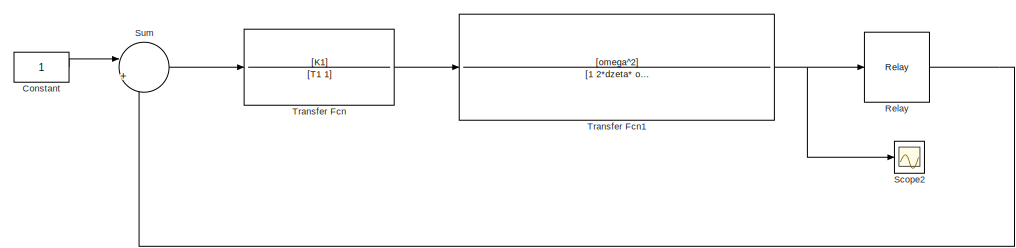
[diagram: root canvas - part 1/2, top center region]
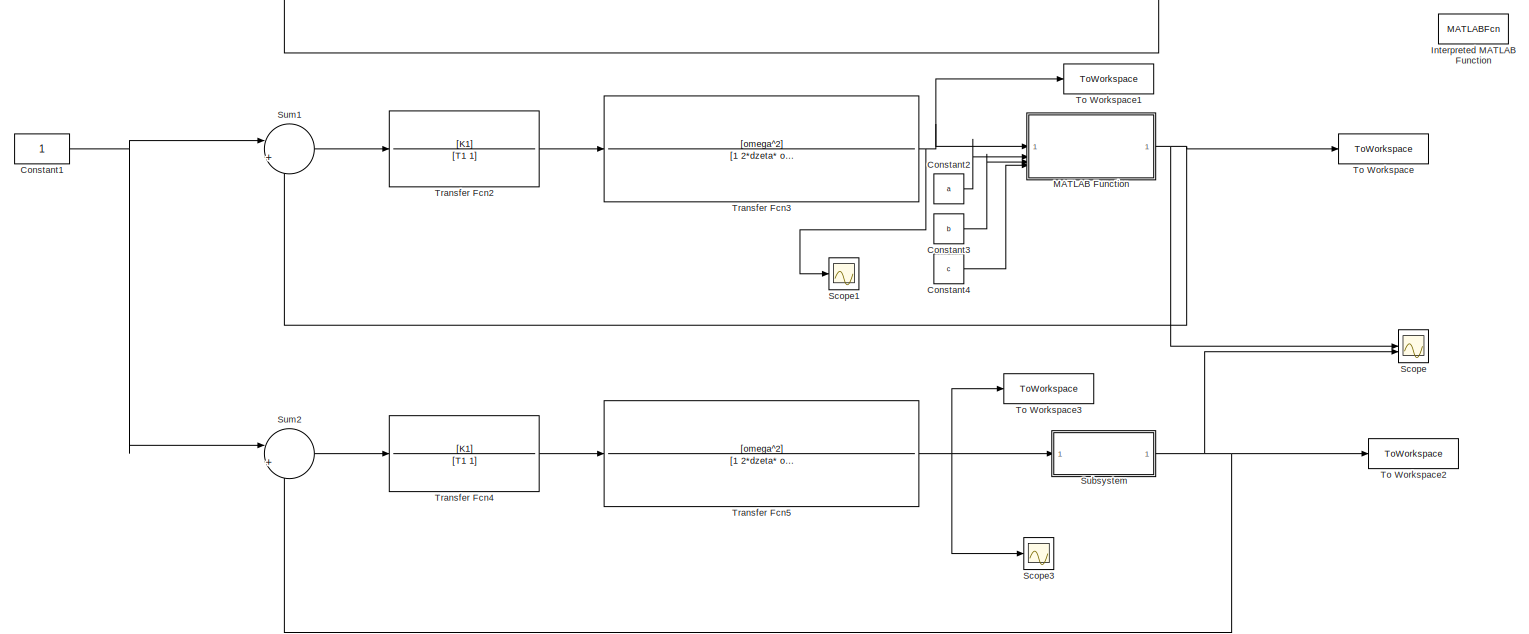
[diagram: root canvas - part 2/2, most of the canvas]
MODEL slx_43e80cd27589
KIND model
CONFIG AbsTol = auto
CONFIG EnableMultiTasking = on
CONFIG FixedStep = auto
CONFIG MaxStep = auto
CONFIG MinStep = auto
CONFIG RelTol = 1e-3
CONFIG SampleTimeConstraint = Unconstrained
CONFIG SolverName = ode15s
CONFIG StartTime = 0.0
CONFIG StopTime = 5
BLOCK [Constant] Constant
  Commented = on
BLOCK [Constant] Constant1
BLOCK [Constant] Constant2
  Value = a
BLOCK [Constant] Constant3
  Value = b
BLOCK [Constant] Constant4
  Value = c
BLOCK [MATLABFcn] Interpreted MATLAB Function
  Commented = on
  MATLABFcn = relay
  OutputSignalType = real
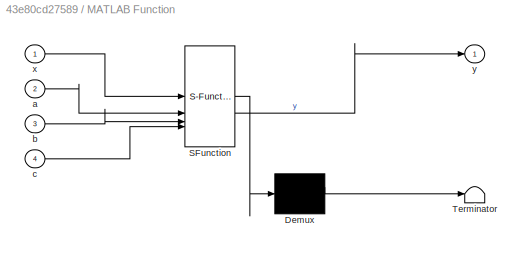
BLOCK [SubSystem] MATLAB Function
  ErrorFcn = Stateflow.Translate.translate
  PermitHierarchicalResolution = ExplicitOnly
  SFBlockType = MATLAB Function
  TreatAsAtomicUnit = on
BLOCK [Demux] MATLAB Function/ Demux 
  Outputs = 1
BLOCK [S-Function] MATLAB Function/ SFunction 
  EnableBusSupport = on
  FunctionName = sf_sfun
  PortCounts = [4 2]
  SFcnIsStateOwnerBlock = off
  SFunctionDeploymentMode = off
  Tag = Stateflow S-Function 2
BLOCK [Terminator] MATLAB Function/ Terminator 
BLOCK [Inport] MATLAB Function/a
  Port = 2
BLOCK [Inport] MATLAB Function/b
  Port = 3
BLOCK [Inport] MATLAB Function/c
  Port = 4
BLOCK [Inport] MATLAB Function/x
BLOCK [Outport] MATLAB Function/y
BLOCK [Relay] Relay
  Commented = on
  OffOutputValue = -c
  OffSwitchValue = b
  OnOutputValue = c
  OnSwitchValue = b
BLOCK [Scope] Scope
  Floating = off
  NumInputPorts = 2
  ScopeSpecificationString = Simulink.scopes.TimeScopeBlockCfg('CurrentConfiguration', extmgr.ConfigurationSet(extmgr.Configuration('Core','General UI',true),extmgr.Configuration('Core','Source UI',true),extmgr.Configuration('Sources','WiredSimulink',true),extmgr.Configuration('Visuals','Time Domain',true,'SerializedDisplays',{struct('MinYLimReal','-1.26081','MaxYLimReal','1.34725','YLabelReal','','MinYLimMag','0.00000','MaxY...<+1377ch>
BLOCK [Scope] Scope1
  Floating = off
  NumInputPorts = 1
  ScopeSpecificationString = Simulink.scopes.TimeScopeBlockCfg('CurrentConfiguration', extmgr.ConfigurationSet(extmgr.Configuration('Core','General UI',true),extmgr.Configuration('Core','Source UI',true),extmgr.Configuration('Sources','WiredSimulink',true,'DataLoggingVariableName','ScopeData1'),extmgr.Configuration('Visuals','Time Domain',true,'SerializedDisplays',{struct('MinYLimReal','-6.52103','MaxYLimReal','27.52231','YLa...<+1706ch>
BLOCK [Scope] Scope2
  Commented = on
  Floating = off
  NumInputPorts = 1
  ScopeSpecificationString = Simulink.scopes.TimeScopeBlockCfg('CurrentConfiguration', extmgr.ConfigurationSet(extmgr.Configuration('Core','General UI',true),extmgr.Configuration('Core','Source UI',true),extmgr.Configuration('Sources','WiredSimulink',true,'DataLoggingVariableName','ScopeData2'),extmgr.Configuration('Visuals','Time Domain',true,'SerializedDisplays',{struct('MinYLimReal','-1.17274','MaxYLimReal','10.55462','YLa...<+1406ch>
BLOCK [Scope] Scope3
  Floating = off
  NumInputPorts = 1
  ScopeSpecificationString = Simulink.scopes.TimeScopeBlockCfg('CurrentConfiguration', extmgr.ConfigurationSet(extmgr.Configuration('Core','General UI',true),extmgr.Configuration('Core','Source UI',true),extmgr.Configuration('Sources','WiredSimulink',true,'DataLoggingVariableName','ScopeData3'),extmgr.Configuration('Visuals','Time Domain',true,'SerializedDisplays',{struct('MinYLimReal','-1.65747','MaxYLimReal','14.91726','YLa...<+1406ch>
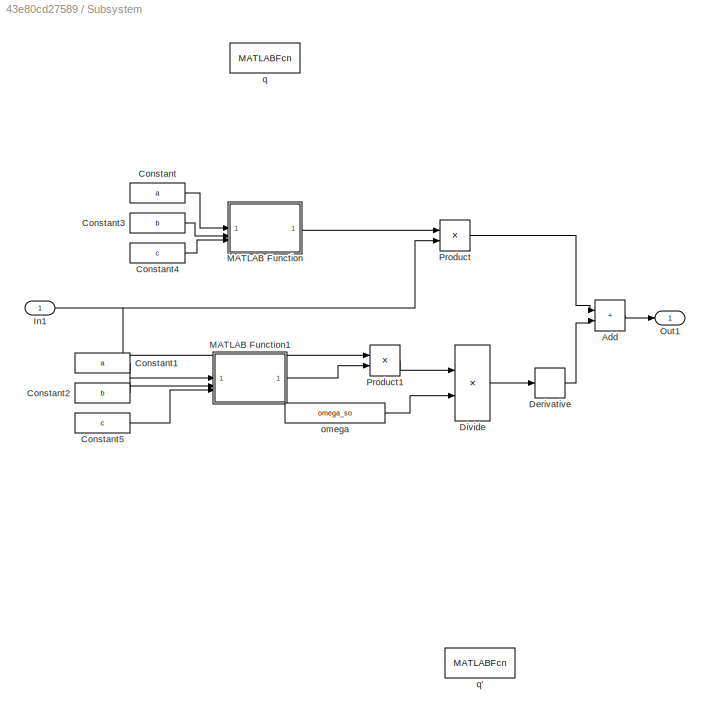
BLOCK [SubSystem] Subsystem
BLOCK [Sum] Subsystem/Add
  IconShape = rectangular
BLOCK [Constant] Subsystem/Constant
  Value = a
BLOCK [Constant] Subsystem/Constant1
  Value = a
BLOCK [Constant] Subsystem/Constant2
  Value = b
BLOCK [Constant] Subsystem/Constant3
  Value = b
BLOCK [Constant] Subsystem/Constant4
  Value = c
BLOCK [Constant] Subsystem/Constant5
  Value = c
BLOCK [Derivative] Subsystem/Derivative
  CoefficientInTFapproximation = 0
BLOCK [Product] Subsystem/Divide
  Inputs = */
BLOCK [Inport] Subsystem/In1
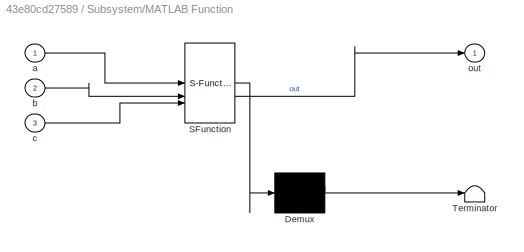
BLOCK [SubSystem] Subsystem/MATLAB Function
  ErrorFcn = Stateflow.Translate.translate
  PermitHierarchicalResolution = ExplicitOnly
  SFBlockType = MATLAB Function
  TreatAsAtomicUnit = on
BLOCK [Demux] Subsystem/MATLAB Function/ Demux 
  Outputs = 1
BLOCK [S-Function] Subsystem/MATLAB Function/ SFunction 
  EnableBusSupport = on
  FunctionName = sf_sfun
  PortCounts = [3 2]
  SFcnIsStateOwnerBlock = off
  SFunctionDeploymentMode = off
  Tag = Stateflow S-Function 1
BLOCK [Terminator] Subsystem/MATLAB Function/ Terminator 
BLOCK [Inport] Subsystem/MATLAB Function/a
BLOCK [Inport] Subsystem/MATLAB Function/b
  Port = 2
BLOCK [Inport] Subsystem/MATLAB Function/c
  Port = 3
BLOCK [Outport] Subsystem/MATLAB Function/out
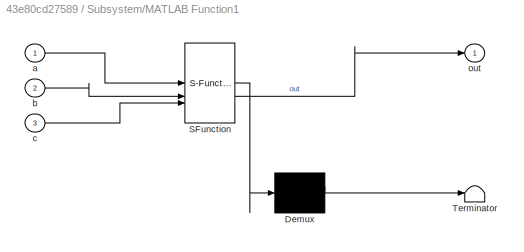
BLOCK [SubSystem] Subsystem/MATLAB Function1
  ErrorFcn = Stateflow.Translate.translate
  PermitHierarchicalResolution = ExplicitOnly
  SFBlockType = MATLAB Function
  TreatAsAtomicUnit = on
BLOCK [Demux] Subsystem/MATLAB Function1/ Demux 
  Outputs = 1
BLOCK [S-Function] Subsystem/MATLAB Function1/ SFunction 
  EnableBusSupport = on
  FunctionName = sf_sfun
  PortCounts = [3 2]
  SFcnIsStateOwnerBlock = off
  SFunctionDeploymentMode = off
  Tag = Stateflow S-Function 3
BLOCK [Terminator] Subsystem/MATLAB Function1/ Terminator 
BLOCK [Inport] Subsystem/MATLAB Function1/a
BLOCK [Inport] Subsystem/MATLAB Function1/b
  Port = 2
BLOCK [Inport] Subsystem/MATLAB Function1/c
  Port = 3
BLOCK [Outport] Subsystem/MATLAB Function1/out
BLOCK [Outport] Subsystem/Out1
BLOCK [Product] Subsystem/Product
BLOCK [Product] Subsystem/Product1
BLOCK [Constant] Subsystem/omega
  Value = omega_so
BLOCK [MATLABFcn] Subsystem/q
  Commented = on
  MATLABFcn = q
BLOCK [MATLABFcn] Subsystem/q'
  Commented = on
  MATLABFcn = q_dot
BLOCK [Sum] Sum
  Commented = on
  Inputs = |+-
BLOCK [Sum] Sum1
  Inputs = |+-
BLOCK [Sum] Sum2
  Inputs = |+-
BLOCK [ToWorkspace] To Workspace
  FixptAsFi = on
  MaxDataPoints = inf
  SampleTime = -1
  SaveFormat = Structure With Time
  VariableName = non_lin_out
BLOCK [ToWorkspace] To Workspace1
  FixptAsFi = on
  MaxDataPoints = inf
  SampleTime = -1
  SaveFormat = Structure With Time
  VariableName = non_lin_lin_out
BLOCK [ToWorkspace] To Workspace2
  FixptAsFi = on
  MaxDataPoints = inf
  SampleTime = -1
  SaveFormat = Structure With Time
  VariableName = lin_out
BLOCK [ToWorkspace] To Workspace3
  FixptAsFi = on
  MaxDataPoints = inf
  SampleTime = -1
  SaveFormat = Structure With Time
  VariableName = lin_lin_out
BLOCK [TransferFcn] Transfer Fcn
  Commented = on
  Denominator = [T1 1]
  Numerator = [K1]
BLOCK [TransferFcn] Transfer Fcn1
  Commented = on
  Denominator = [1 2*dzeta* omega omega^2]
  Numerator = [omega^2]
BLOCK [TransferFcn] Transfer Fcn2
  Denominator = [T1 1]
  Numerator = [K1]
BLOCK [TransferFcn] Transfer Fcn3
  Denominator = [1 2*dzeta* omega omega^2]
  Numerator = [omega^2]
BLOCK [TransferFcn] Transfer Fcn4
  Denominator = [T1 1]
  Numerator = [K1]
BLOCK [TransferFcn] Transfer Fcn5
  Denominator = [1 2*dzeta* omega omega^2]
  Numerator = [omega^2]
NET Constant1:1 -> Sum1:1, Sum2:1
LINE Constant2:1 -> MATLAB Function:2
LINE Constant3:1 -> MATLAB Function:3
LINE Constant4:1 -> MATLAB Function:4
LINE Constant:1 -> Sum:1
NET MATLAB Function:1 -> Scope:1, Sum1:2, To Workspace:1
LINE Relay:1 -> Sum:2
LINE Subsystem/Add:1 -> Subsystem/Out1:1
LINE Subsystem/Constant1:1 -> Subsystem/MATLAB Function1:1
LINE Subsystem/Constant2:1 -> Subsystem/MATLAB Function1:2
LINE Subsystem/Constant3:1 -> Subsystem/MATLAB Function:2
LINE Subsystem/Constant4:1 -> Subsystem/MATLAB Function:3
LINE Subsystem/Constant5:1 -> Subsystem/MATLAB Function1:3
LINE Subsystem/Constant:1 -> Subsystem/MATLAB Function:1
LINE Subsystem/Derivative:1 -> Subsystem/Add:2
LINE Subsystem/Divide:1 -> Subsystem/Derivative:1
NET Subsystem/In1:1 -> Subsystem/Product1:1, Subsystem/Product:2
LINE Subsystem/MATLAB Function1:1 -> Subsystem/Product1:2
LINE Subsystem/MATLAB Function:1 -> Subsystem/Product:1
LINE Subsystem/Product1:1 -> Subsystem/Divide:1
LINE Subsystem/Product:1 -> Subsystem/Add:1
LINE Subsystem/omega:1 -> Subsystem/Divide:2
NET Subsystem:1 -> Scope:2, Sum2:2, To Workspace2:1
LINE Sum1:1 -> Transfer Fcn2:1
LINE Sum2:1 -> Transfer Fcn4:1
LINE Sum:1 -> Transfer Fcn:1
NET Transfer Fcn1:1 -> Relay:1, Scope2:1
LINE Transfer Fcn2:1 -> Transfer Fcn3:1
NET Transfer Fcn3:1 -> MATLAB Function:1, Scope1:1, To Workspace1:1
LINE Transfer Fcn4:1 -> Transfer Fcn5:1
NET Transfer Fcn5:1 -> Scope3:1, Subsystem:1, To Workspace3:1
LINE Transfer Fcn:1 -> Transfer Fcn1:1
note: NET lines group one-source signal fan-out (src -> all destinations, sorted); 1:1 wires keep LINE
CHART Subsystem/MATLAB Function states=1 transitions=1
  STATE_LABEL 'eML_blk_kernel()'
  STATE_LABEL 'SCRIPT:\nfunction out = q(a, b, c)\n\n% a = 15.5;\n% b = 1;\n% c = 1;\nout = 4*c/(pi * a) * sqrt(1 - (b/a)^2);\n\nend'
CHART MATLAB Function states=1 transitions=1
  STATE_LABEL 'eML_blk_kernel()'
  STATE_LABEL 'SCRIPT:\nfunction y = relay(x, a, b, c) %\n\nlower = -1;\nupper = 1;\n\n% a = 15.5;\n% b = 1;\n% c = 1;\n\npersistent sts y_prev\n\nif isempty(sts)\n    \n    sts = lower;\n    y_prev = -1;\nend\n\nif (sts == upper) && (x <= -b)\n    \n    y = -c;\n    sts = lower;\nelseif (sts == lower) && (x >= b)\n    \n    y = c;\n    sts = upper;\nelse\n    \n    y = y_prev;\nend\n\ny_prev = y;\nend'
CHART Subsystem/MATLAB Function1 states=1 transitions=1
  STATE_LABEL 'eML_blk_kernel()'
  STATE_LABEL 'SCRIPT:\nfunction out = q_dot(a, b, c)\n\n% a = 15.5;\n% b = 1;\n% c = 1;\n\nif (a >= b)\n    \n    out = -4*c*b/(pi*a^2);\nelse\n    \n    out = 0;    \nend\n\nend'
CHART  states=0 transitions=0
CHART  states=0 transitions=0
CHART  states=0 transitions=0
